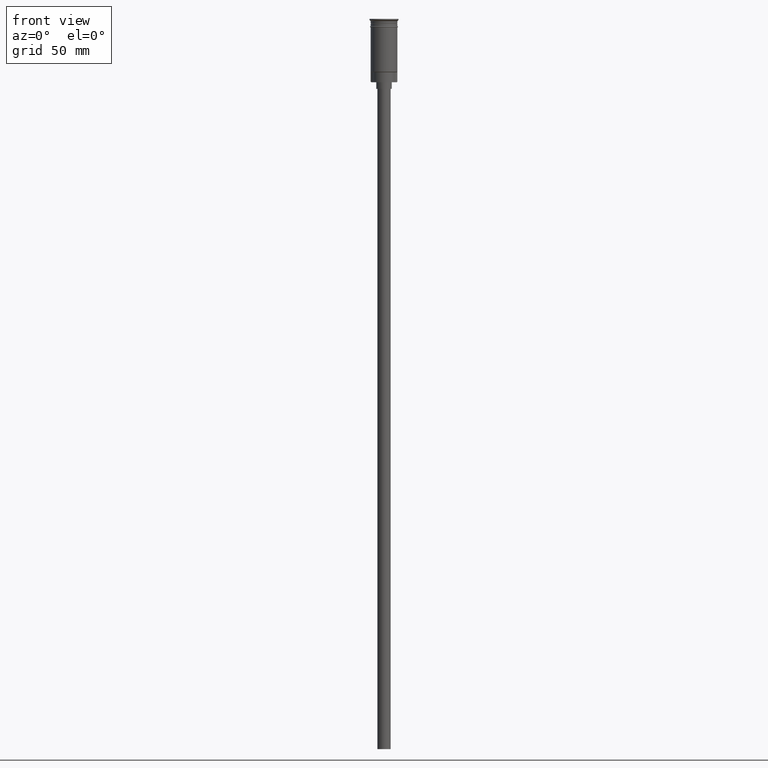
[diagram: clean part render]
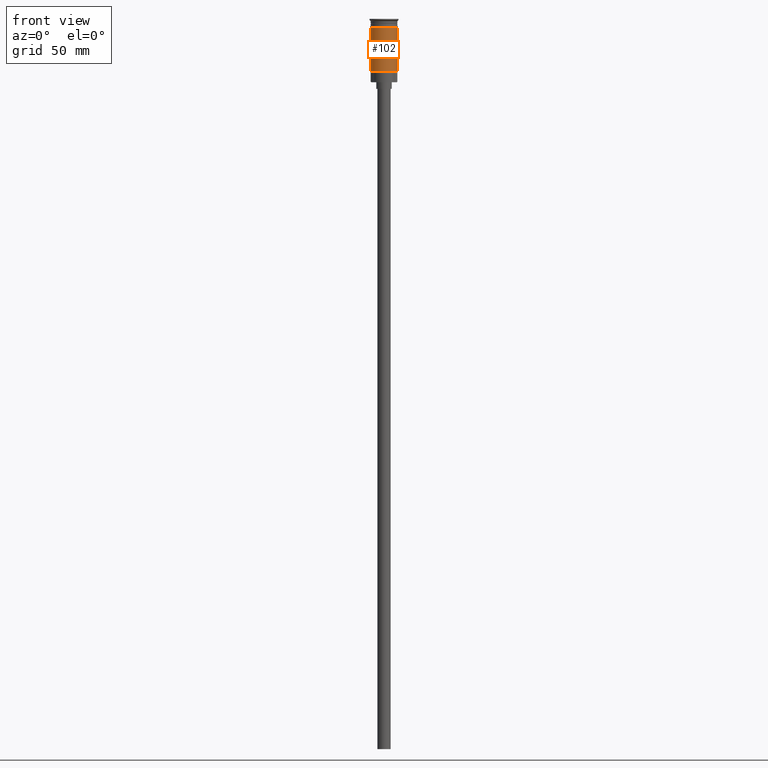
[diagram: same view with one face highlighted and labeled with its STEP entity id]
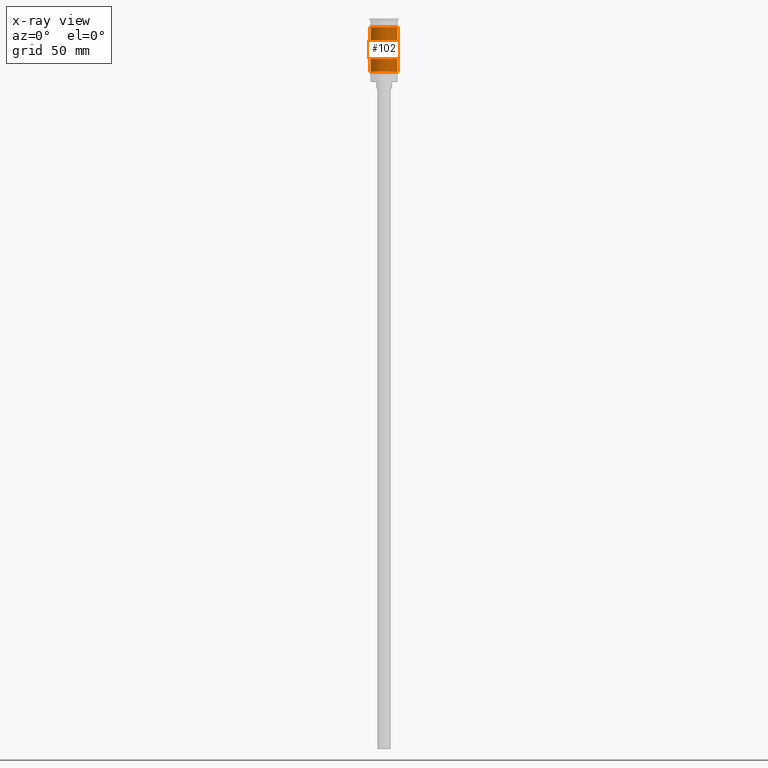
[diagram: x-ray of the same camera — body ghosted, the highlighted face saturated]
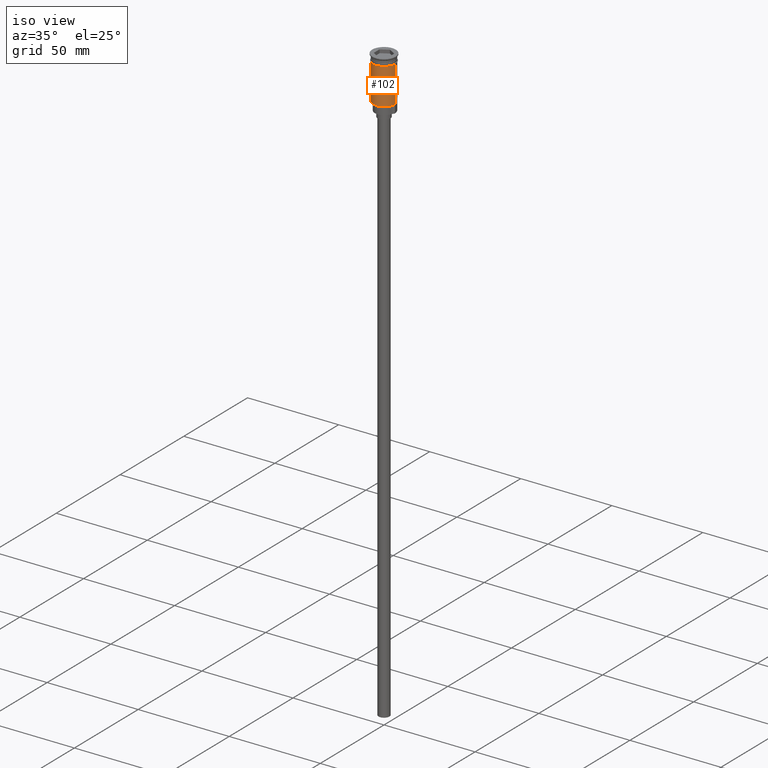
[diagram: same view with one face highlighted and labeled with its STEP entity id]
A machine part, front view. The second image highlights one B-rep face of the part: STEP entity #102.
The next image is the same camera in x-ray: the body ghosted, the highlighted face saturated — about 0% of this face is hidden behind the body in this view.
A second angle (iso view) of the same face is appended — the face is thin or edge-on in the first view.
In plain terms, the highlighted cylindrical surface (edge-blend (fillet) strip) has radius 6 mm, axis along (-0, -0, 1).
Its self-contained STEP definition (entity closure, byte-faithful):
#6 = AXIS2_PLACEMENT_3D ( 'NONE', #325, #1185, #626 ) ;
#53 = CARTESIAN_POINT ( 'NONE',  ( 5.999999999999997335, 7.347880794884115792E-16, -23.79999999999995453 ) ) ;
#90 = EDGE_CURVE ( 'NONE', #535, #257, #809, .T. ) ;
#102 = ADVANCED_FACE ( 'NONE', ( #911 ), #1148, .T. ) ;
#203 = CARTESIAN_POINT ( 'NONE',  ( 6.000000000000000000, 0.000000000000000000, -3.799999999999998490 ) ) ;
#257 = VERTEX_POINT ( 'NONE', #203 ) ;
#279 = DIRECTION ( 'NONE',  ( 1.000000000000000000, 0.000000000000000000, 0.000000000000000000 ) ) ;
#317 = AXIS2_PLACEMENT_3D ( 'NONE', #1508, #630, #279 ) ;
#325 = CARTESIAN_POINT ( 'NONE',  ( 0.000000000000000000, 0.000000000000000000, -23.79999999999995453 ) ) ;
#371 = EDGE_LOOP ( 'NONE', ( #1231, #1552, #1040, #777 ) ) ;
#429 = CARTESIAN_POINT ( 'NONE',  ( 5.999999999999997335, 0.000000000000000000, 0.000000000000000000 ) ) ;
#473 = AXIS2_PLACEMENT_3D ( 'NONE', #1533, #999, #525 ) ;
#483 = VERTEX_POINT ( 'NONE', #1078 ) ;
#525 = DIRECTION ( 'NONE',  ( 1.000000000000000000, 0.000000000000000000, 0.000000000000000000 ) ) ;
#535 = VERTEX_POINT ( 'NONE', #1518 ) ;
#626 = DIRECTION ( 'NONE',  ( -1.000000000000000000, 0.000000000000000000, 0.000000000000000000 ) ) ;
#630 = DIRECTION ( 'NONE',  ( -0.000000000000000000, -0.000000000000000000, 1.000000000000000000 ) ) ;
#640 = VERTEX_POINT ( 'NONE', #53 ) ;
#678 = VECTOR ( 'NONE', #1497, 1000.000000000000000 ) ;
#692 = CARTESIAN_POINT ( 'NONE',  ( -5.999999999999997335, 7.347880794884116778E-16, 0.000000000000000000 ) ) ;
#771 = EDGE_CURVE ( 'NONE', #483, #640, #1190, .T. ) ;
#777 = ORIENTED_EDGE ( 'NONE', *, *, #90, .F. ) ;
#807 = LINE ( 'NONE', #692, #988 ) ;
#809 = CIRCLE ( 'NONE', #317, 6.000000000000000000 ) ;
#891 = LINE ( 'NONE', #429, #678 ) ;
#911 = FACE_OUTER_BOUND ( 'NONE', #371, .T. ) ;
#988 = VECTOR ( 'NONE', #1568, 1000.000000000000000 ) ;
#999 = DIRECTION ( 'NONE',  ( -0.000000000000000000, -0.000000000000000000, 1.000000000000000000 ) ) ;
#1040 = ORIENTED_EDGE ( 'NONE', *, *, #1419, .T. ) ;
#1078 = CARTESIAN_POINT ( 'NONE',  ( -5.999999999999994671, 0.000000000000000000, -23.79999999999995453 ) ) ;
#1148 = CYLINDRICAL_SURFACE ( 'NONE', #473, 5.999999999999997335 ) ;
#1185 = DIRECTION ( 'NONE',  ( -0.000000000000000000, -0.000000000000000000, 1.000000000000000000 ) ) ;
#1190 = CIRCLE ( 'NONE', #6, 5.999999999999997335 ) ;
#1231 = ORIENTED_EDGE ( 'NONE', *, *, #1528, .F. ) ;
#1419 = EDGE_CURVE ( 'NONE', #640, #257, #891, .T. ) ;
#1497 = DIRECTION ( 'NONE',  ( -0.000000000000000000, -0.000000000000000000, 1.000000000000000000 ) ) ;
#1508 = CARTESIAN_POINT ( 'NONE',  ( 0.000000000000000000, 0.000000000000000000, -3.799999999999998490 ) ) ;
#1518 = CARTESIAN_POINT ( 'NONE',  ( -6.000000000000000000, 7.347880794884119736E-16, -3.799999999999998490 ) ) ;
#1528 = EDGE_CURVE ( 'NONE', #483, #535, #807, .T. ) ;
#1533 = CARTESIAN_POINT ( 'NONE',  ( 0.000000000000000000, 0.000000000000000000, 0.000000000000000000 ) ) ;
#1552 = ORIENTED_EDGE ( 'NONE', *, *, #771, .T. ) ;
#1568 = DIRECTION ( 'NONE',  ( -0.000000000000000000, -0.000000000000000000, 1.000000000000000000 ) ) ;